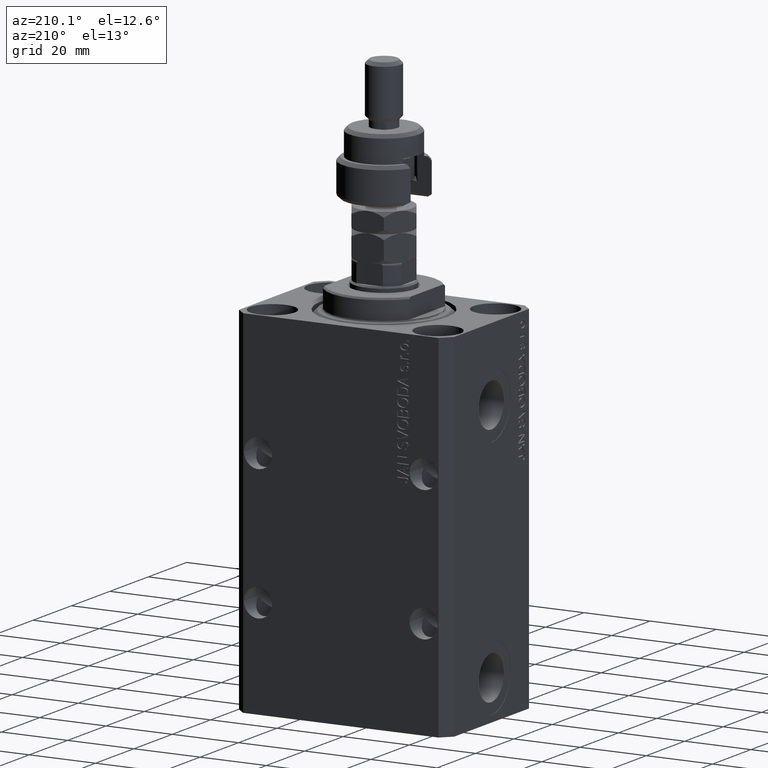
[diagram: clean part render]
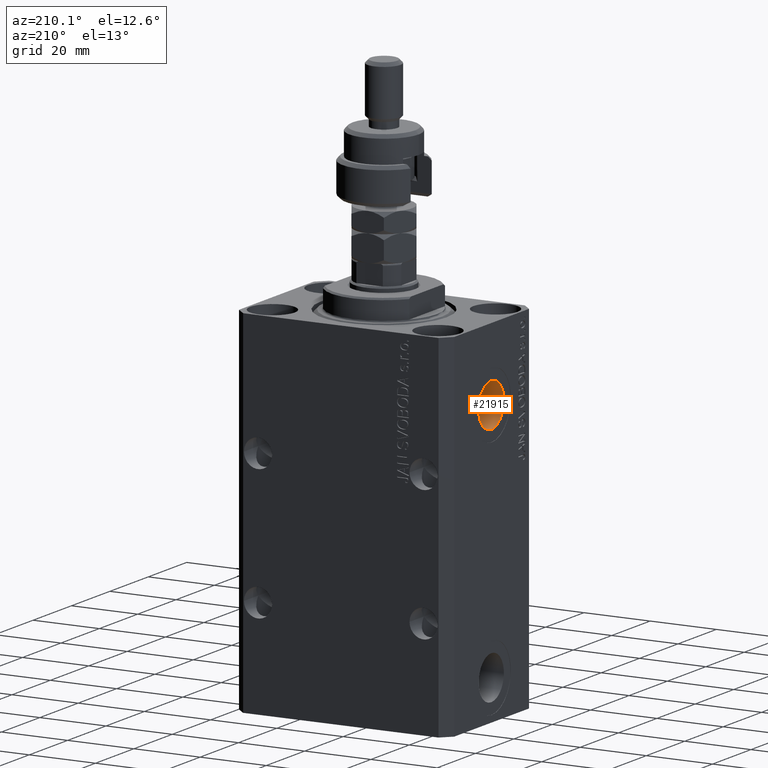
[diagram: same view with one face highlighted and labeled with its STEP entity id]
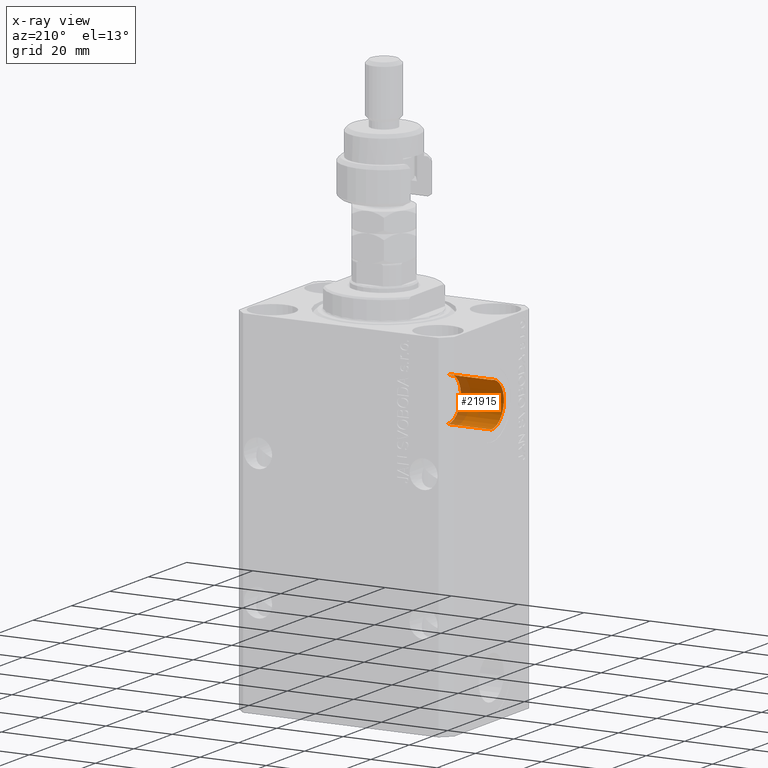
[diagram: x-ray of the same camera — body ghosted, the highlighted face saturated]
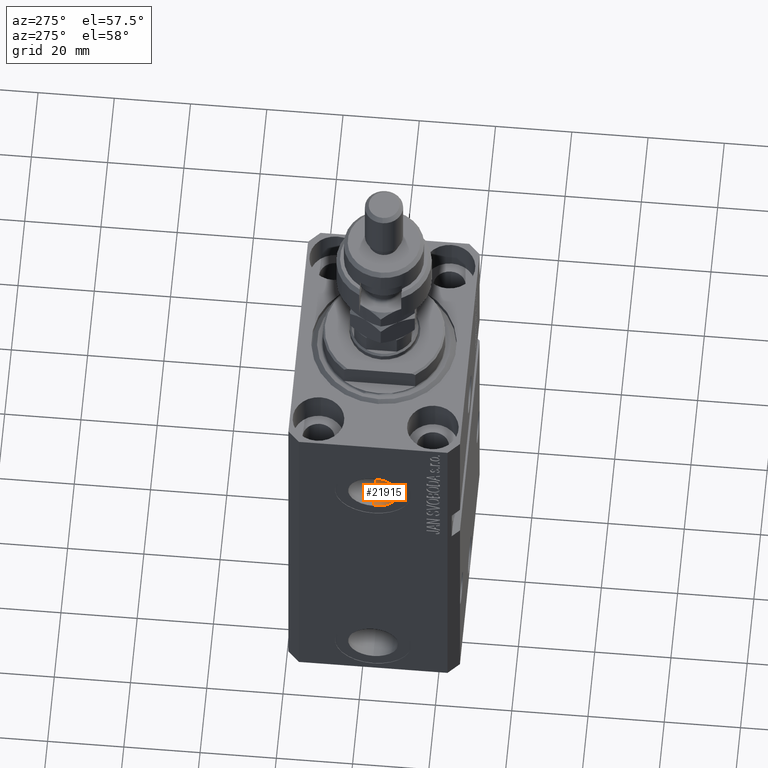
[diagram: same view with one face highlighted and labeled with its STEP entity id]
A machine part, auxiliary view. The second image highlights one B-rep face of the part: STEP entity #21915.
The next image is the same camera in x-ray: the body ghosted, the highlighted face saturated — about 22% of this face is hidden behind the body in this view.
A second angle (auxiliary view) of the same face is appended — the face is thin or edge-on in the first view.
In plain terms, the highlighted cylindrical surface (edge-blend (fillet) strip) has radius 6.58 mm, axis along (-1, -0, -0).
Its self-contained STEP definition (entity closure, byte-faithful):
#864 = CIRCLE ( 'NONE', #1658, 6.579999999999999183 ) ;
#1625 = DIRECTION ( 'NONE',  ( -1.000000000000000000, 0.000000000000000000, 0.000000000000000000 ) ) ;
#1658 = AXIS2_PLACEMENT_3D ( 'NONE', #24094, #1625, #24581 ) ;
#3026 = CARTESIAN_POINT ( 'NONE',  ( -19.39999999999650271, 0.000000000000000000, -15.41999999999999993 ) ) ;
#4014 = CARTESIAN_POINT ( 'NONE',  ( -32.39999999999650271, 8.058175938389579572E-16, -28.57999999999999829 ) ) ;
#5068 = CARTESIAN_POINT ( 'NONE',  ( -19.39999999999650271, 0.000000000000000000, -15.41999999999999993 ) ) ;
#6078 = AXIS2_PLACEMENT_3D ( 'NONE', #13183, #39586, #24211 ) ;
#9445 = LINE ( 'NONE', #5068, #27886 ) ;
#12696 = CARTESIAN_POINT ( 'NONE',  ( -19.39999999999650271, 8.058175938389580558E-16, -28.57999999999999829 ) ) ;
#13089 = VERTEX_POINT ( 'NONE', #3026 ) ;
#13183 = CARTESIAN_POINT ( 'NONE',  ( -19.39999999999650271, 0.000000000000000000, -22.00000000000000000 ) ) ;
#14942 = ORIENTED_EDGE ( 'NONE', *, *, #40120, .T. ) ;
#16343 = CARTESIAN_POINT ( 'NONE',  ( -19.39999999999650271, 8.058175938389579572E-16, -28.57999999999999829 ) ) ;
#16696 = AXIS2_PLACEMENT_3D ( 'NONE', #24758, #32091, #47236 ) ;
#16810 = VERTEX_POINT ( 'NONE', #4014 ) ;
#16916 = VERTEX_POINT ( 'NONE', #21128 ) ;
#17100 = CYLINDRICAL_SURFACE ( 'NONE', #6078, 6.579999999999999183 ) ;
#18314 = ORIENTED_EDGE ( 'NONE', *, *, #47530, .F. ) ;
#19040 = CIRCLE ( 'NONE', #16696, 6.579999999999999183 ) ;
#20287 = LINE ( 'NONE', #12696, #20306 ) ;
#20306 = VECTOR ( 'NONE', #35223, 1000.000000000000000 ) ;
#21128 = CARTESIAN_POINT ( 'NONE',  ( -32.39999999999650271, 0.000000000000000000, -15.41999999999999993 ) ) ;
#21915 = ADVANCED_FACE ( 'NONE', ( #24693 ), #17100, .F. ) ;
#23823 = VERTEX_POINT ( 'NONE', #16343 ) ;
#24094 = CARTESIAN_POINT ( 'NONE',  ( -32.39999999999650271, 0.000000000000000000, -22.00000000000000000 ) ) ;
#24211 = DIRECTION ( 'NONE',  ( 0.000000000000000000, 0.000000000000000000, 1.000000000000000000 ) ) ;
#24581 = DIRECTION ( 'NONE',  ( 0.000000000000000000, 0.000000000000000000, 1.000000000000000000 ) ) ;
#24693 = FACE_OUTER_BOUND ( 'NONE', #28022, .T. ) ;
#24758 = CARTESIAN_POINT ( 'NONE',  ( -19.39999999999650271, 0.000000000000000000, -22.00000000000000000 ) ) ;
#27886 = VECTOR ( 'NONE', #31441, 1000.000000000000000 ) ;
#28022 = EDGE_LOOP ( 'NONE', ( #18314, #30398, #14942, #38349 ) ) ;
#28939 = EDGE_CURVE ( 'NONE', #13089, #16916, #9445, .T. ) ;
#30398 = ORIENTED_EDGE ( 'NONE', *, *, #35375, .T. ) ;
#31441 = DIRECTION ( 'NONE',  ( -1.000000000000000000, -0.000000000000000000, -0.000000000000000000 ) ) ;
#32091 = DIRECTION ( 'NONE',  ( -1.000000000000000000, 0.000000000000000000, 0.000000000000000000 ) ) ;
#35223 = DIRECTION ( 'NONE',  ( -1.000000000000000000, -0.000000000000000000, -0.000000000000000000 ) ) ;
#35375 = EDGE_CURVE ( 'NONE', #23823, #16810, #20287, .T. ) ;
#38349 = ORIENTED_EDGE ( 'NONE', *, *, #28939, .F. ) ;
#39586 = DIRECTION ( 'NONE',  ( -1.000000000000000000, -0.000000000000000000, -0.000000000000000000 ) ) ;
#40120 = EDGE_CURVE ( 'NONE', #16810, #16916, #864, .T. ) ;
#47236 = DIRECTION ( 'NONE',  ( 0.000000000000000000, 0.000000000000000000, 1.000000000000000000 ) ) ;
#47530 = EDGE_CURVE ( 'NONE', #23823, #13089, #19040, .T. ) ;